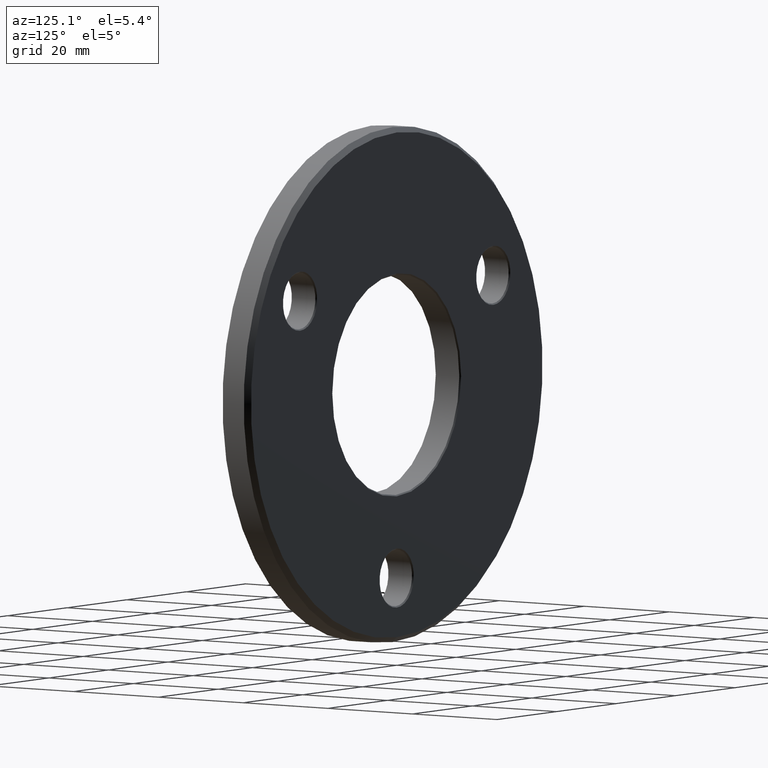
[diagram: clean part render]
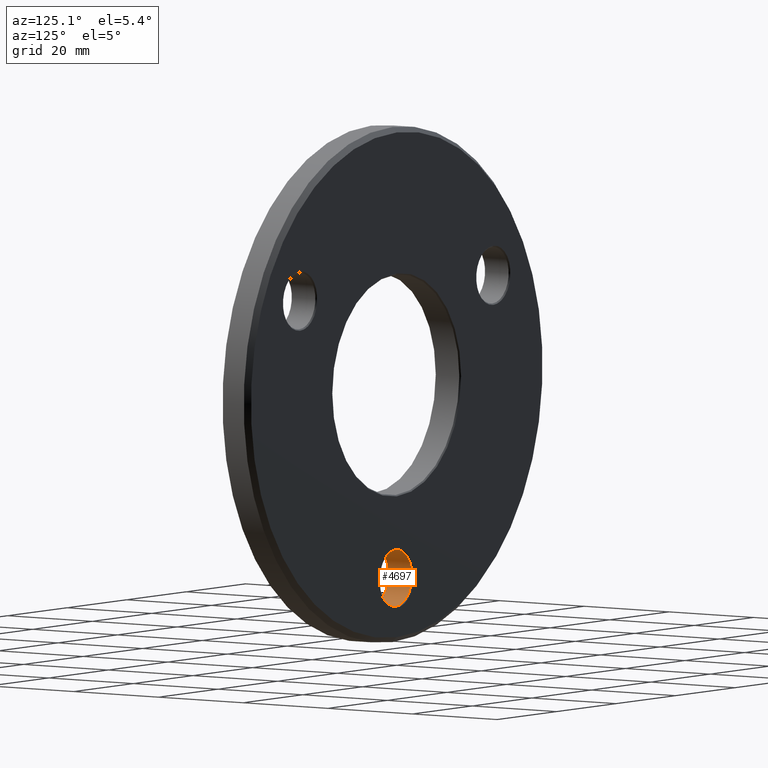
[diagram: same view with one face highlighted and labeled with its STEP entity id]
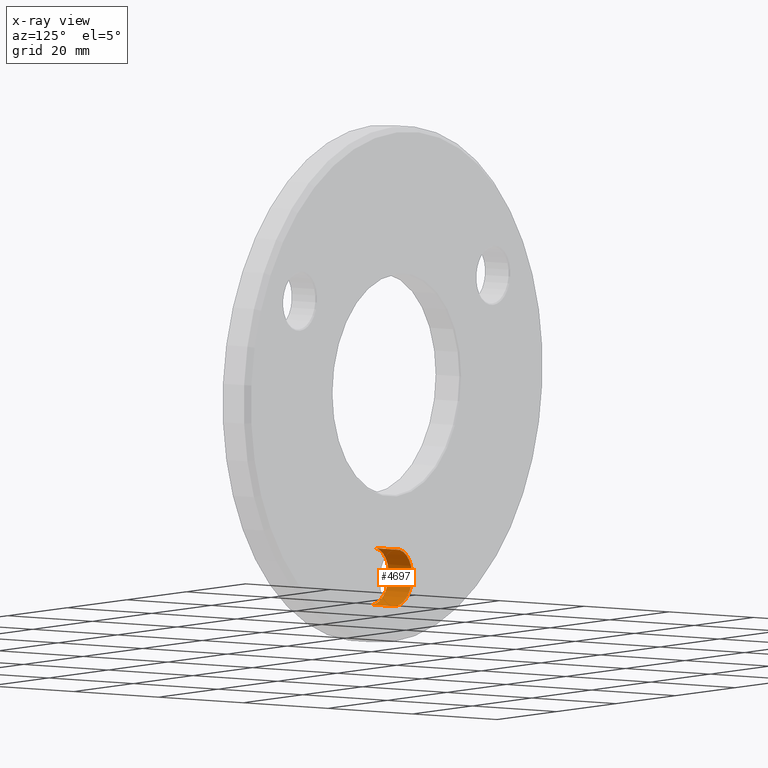
[diagram: x-ray of the same camera — body ghosted, the highlighted face saturated]
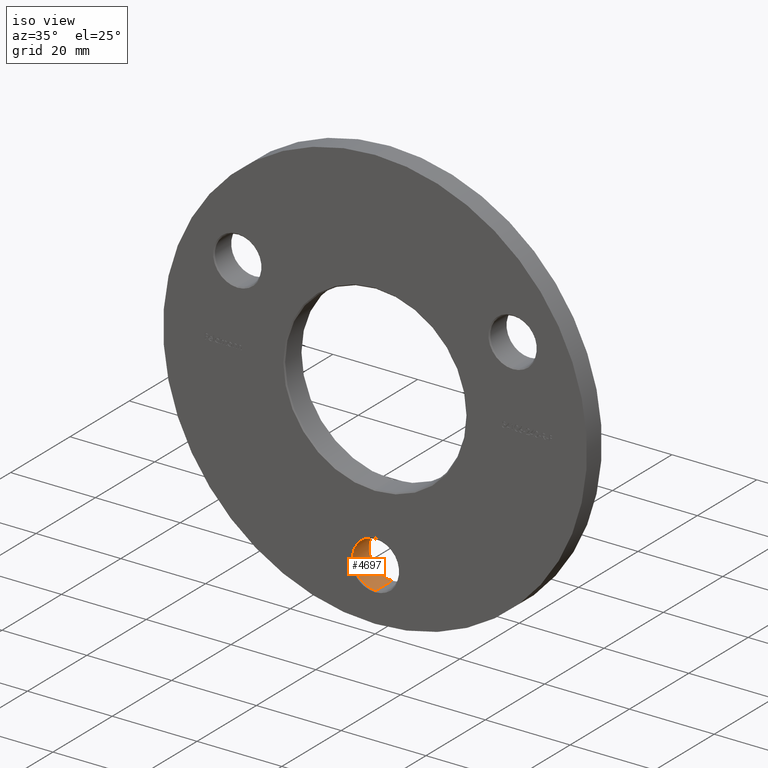
[diagram: same view with one face highlighted and labeled with its STEP entity id]
A machine part, auxiliary view. The second image highlights one B-rep face of the part: STEP entity #4697.
The next image is the same camera in x-ray: the body ghosted, the highlighted face saturated — about 0% of this face is hidden behind the body in this view.
A second angle (iso view) of the same face is appended — the face is thin or edge-on in the first view.
In plain terms, the highlighted cylindrical surface (edge-blend (fillet) strip) has radius 5.5 mm, axis along (-0, -1, -0).
Its self-contained STEP definition (entity closure, byte-faithful):
#13 = DIRECTION ( 'NONE',  ( -0.000000000000000000, -1.000000000000000000, -0.000000000000000000 ) ) ;
#230 = ORIENTED_EDGE ( 'NONE', *, *, #10299, .T. ) ;
#1110 = AXIS2_PLACEMENT_3D ( 'NONE', #9871, #13, #7598 ) ;
#1223 = CARTESIAN_POINT ( 'NONE',  ( 0.000000000000000000, 6.000000000000000000, -37.50000000000000000 ) ) ;
#1234 = EDGE_CURVE ( 'NONE', #11920, #6190, #8469, .T. ) ;
#2760 = ORIENTED_EDGE ( 'NONE', *, *, #11926, .T. ) ;
#2762 = CARTESIAN_POINT ( 'NONE',  ( 6.735557395310441037E-16, 6.000000000000000000, -32.00000000000000000 ) ) ;
#2962 = DIRECTION ( 'NONE',  ( -0.000000000000000000, -1.000000000000000000, -0.000000000000000000 ) ) ;
#3513 = DIRECTION ( 'NONE',  ( -0.000000000000000000, -1.000000000000000000, -0.000000000000000000 ) ) ;
#3773 = VECTOR ( 'NONE', #4973, 1000.000000000000000 ) ;
#3876 = VERTEX_POINT ( 'NONE', #9945 ) ;
#3963 = VECTOR ( 'NONE', #2962, 1000.000000000000000 ) ;
#4047 = AXIS2_PLACEMENT_3D ( 'NONE', #1223, #3513, #8873 ) ;
#4261 = CYLINDRICAL_SURFACE ( 'NONE', #4047, 5.499999999999998224 ) ;
#4697 = ADVANCED_FACE ( 'NONE', ( #12990 ), #4261, .F. ) ;
#4832 = LINE ( 'NONE', #11568, #3963 ) ;
#4973 = DIRECTION ( 'NONE',  ( -0.000000000000000000, -1.000000000000000000, -0.000000000000000000 ) ) ;
#5515 = EDGE_LOOP ( 'NONE', ( #2760, #230, #11324, #13882 ) ) ;
#5663 = DIRECTION ( 'NONE',  ( 0.000000000000000000, 0.000000000000000000, 1.000000000000000000 ) ) ;
#6190 = VERTEX_POINT ( 'NONE', #6625 ) ;
#6625 = CARTESIAN_POINT ( 'NONE',  ( 0.000000000000000000, 0.2499999999999559797, -43.00000000000000000 ) ) ;
#7209 = AXIS2_PLACEMENT_3D ( 'NONE', #12994, #8643, #5663 ) ;
#7355 = LINE ( 'NONE', #2762, #3773 ) ;
#7598 = DIRECTION ( 'NONE',  ( 0.000000000000000000, 0.000000000000000000, 1.000000000000000000 ) ) ;
#8469 = CIRCLE ( 'NONE', #1110, 5.499999999999998224 ) ;
#8643 = DIRECTION ( 'NONE',  ( 0.000000000000000000, 1.000000000000000000, 0.000000000000000000 ) ) ;
#8718 = EDGE_CURVE ( 'NONE', #13151, #6190, #4832, .T. ) ;
#8873 = DIRECTION ( 'NONE',  ( 0.000000000000000000, 0.000000000000000000, -1.000000000000000000 ) ) ;
#8896 = CIRCLE ( 'NONE', #7209, 5.499999999999998224 ) ;
#9871 = CARTESIAN_POINT ( 'NONE',  ( 0.000000000000000000, 0.2499999999999559797, -37.50000000000000000 ) ) ;
#9945 = CARTESIAN_POINT ( 'NONE',  ( 6.735557395310443009E-16, 5.749999999999988454, -32.00000000000000000 ) ) ;
#10299 = EDGE_CURVE ( 'NONE', #3876, #11920, #7355, .T. ) ;
#11324 = ORIENTED_EDGE ( 'NONE', *, *, #1234, .T. ) ;
#11568 = CARTESIAN_POINT ( 'NONE',  ( 0.000000000000000000, 6.000000000000000000, -43.00000000000000000 ) ) ;
#11792 = CARTESIAN_POINT ( 'NONE',  ( 6.735557395310443009E-16, 0.2499999999999559797, -32.00000000000000000 ) ) ;
#11920 = VERTEX_POINT ( 'NONE', #11792 ) ;
#11926 = EDGE_CURVE ( 'NONE', #13151, #3876, #8896, .T. ) ;
#12288 = CARTESIAN_POINT ( 'NONE',  ( 0.000000000000000000, 5.749999999999988454, -43.00000000000000000 ) ) ;
#12990 = FACE_OUTER_BOUND ( 'NONE', #5515, .T. ) ;
#12994 = CARTESIAN_POINT ( 'NONE',  ( 0.000000000000000000, 5.749999999999988454, -37.50000000000000000 ) ) ;
#13151 = VERTEX_POINT ( 'NONE', #12288 ) ;
#13882 = ORIENTED_EDGE ( 'NONE', *, *, #8718, .F. ) ;